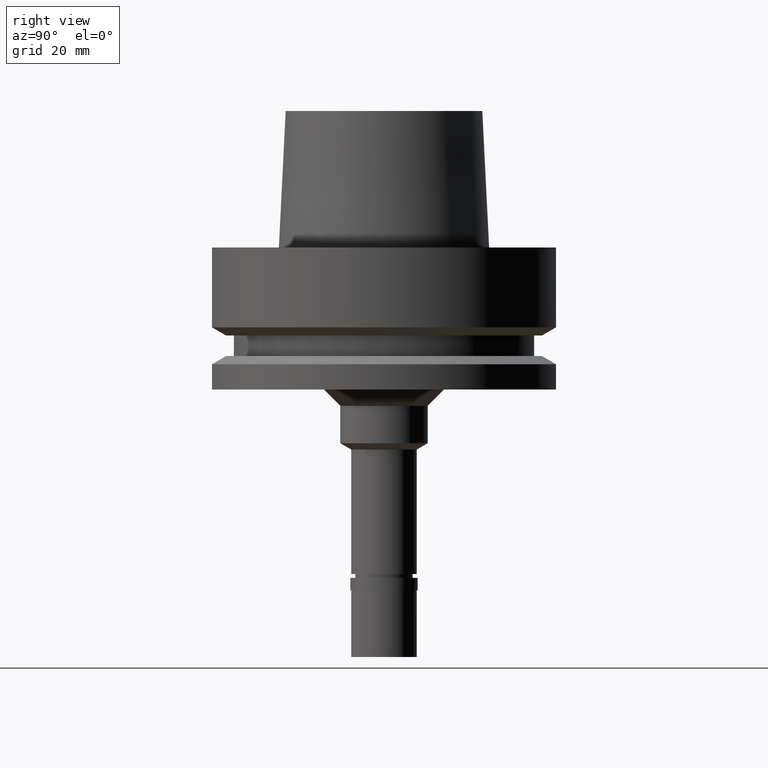
[diagram: clean part render]
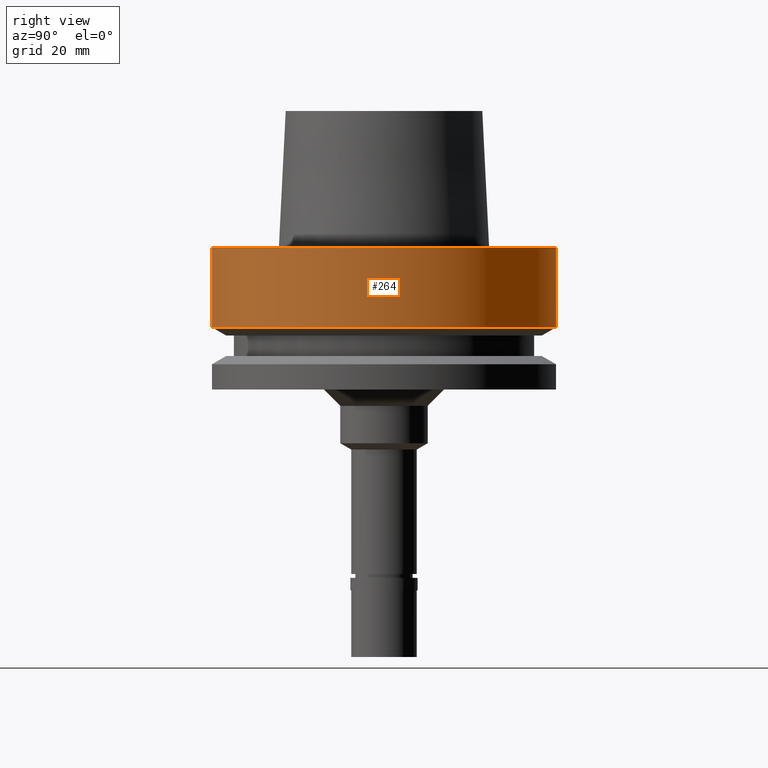
[diagram: same view with one face highlighted and labeled with its STEP entity id]
A machine part, right view. The second image highlights one B-rep face of the part: STEP entity #264.
In plain terms, the highlighted cylindrical surface (partial cylindrical patch) has radius 31.5 mm, axis along (0, 0, 1).
Its self-contained STEP definition (entity closure, byte-faithful):
#50 = DIRECTION ( 'NONE',  ( 0.0000000000000000000, 4.130355870612999632E-14, -1.000000000000000000 ) ) ;
#51 = ORIENTED_EDGE ( 'NONE', *, *, #2103, .F. ) ;
#52 = CARTESIAN_POINT ( 'NONE',  ( 0.0000000000000000000, -31.50000000000000000, 1.705302565823999875E-13 ) ) ;
#181 = DIRECTION ( 'NONE',  ( 0.0000000000000000000, -1.000000000000000000, 0.0000000000000000000 ) ) ;
#264 = ADVANCED_FACE ( 'NONE', ( #2628 ), #2136, .T. ) ;
#269 = ORIENTED_EDGE ( 'NONE', *, *, #1853, .T. ) ;
#311 = AXIS2_PLACEMENT_3D ( 'NONE', #1488, #2780, #1711 ) ;
#354 = CARTESIAN_POINT ( 'NONE',  ( 0.0000000000000000000, -31.50000000000000000, -14.62250092523999889 ) ) ;
#728 = CIRCLE ( 'NONE', #2654, 31.50000000000000000 ) ;
#797 = ORIENTED_EDGE ( 'NONE', *, *, #2784, .T. ) ;
#856 = DIRECTION ( 'NONE',  ( 0.0000000000000000000, 0.0000000000000000000, 1.000000000000000000 ) ) ;
#886 = CARTESIAN_POINT ( 'NONE',  ( 0.0000000000000000000, 31.50000000000000000, -14.62250092523999889 ) ) ;
#967 = CARTESIAN_POINT ( 'NONE',  ( 0.0000000000000000000, -31.50000000000000000, 1.042129345780999972E-13 ) ) ;
#1065 = CARTESIAN_POINT ( 'NONE',  ( 0.0000000000000000000, 0.0000000000000000000, 1.705302565823999875E-13 ) ) ;
#1471 = VECTOR ( 'NONE', #50, 1000.000000000000000 ) ;
#1488 = CARTESIAN_POINT ( 'NONE',  ( 0.0000000000000000000, 0.0000000000000000000, -75.80000000000001137 ) ) ;
#1554 = VERTEX_POINT ( 'NONE', #52 ) ;
#1700 = CARTESIAN_POINT ( 'NONE',  ( 0.0000000000000000000, 0.0000000000000000000, -14.62250092523999889 ) ) ;
#1711 = DIRECTION ( 'NONE',  ( 0.0000000000000000000, 1.000000000000000000, 0.0000000000000000000 ) ) ;
#1712 = LINE ( 'NONE', #2387, #1471 ) ;
#1745 = EDGE_LOOP ( 'NONE', ( #1817, #797, #269, #51 ) ) ;
#1806 = DIRECTION ( 'NONE',  ( 0.0000000000000000000, -4.130355870612999632E-14, -1.000000000000000000 ) ) ;
#1817 = ORIENTED_EDGE ( 'NONE', *, *, #1926, .T. ) ;
#1824 = VERTEX_POINT ( 'NONE', #354 ) ;
#1853 = EDGE_CURVE ( 'NONE', #1824, #2066, #2100, .T. ) ;
#1926 = EDGE_CURVE ( 'NONE', #2397, #1554, #728, .T. ) ;
#2066 = VERTEX_POINT ( 'NONE', #886 ) ;
#2081 = DIRECTION ( 'NONE',  ( 0.0000000000000000000, 0.0000000000000000000, -1.000000000000000000 ) ) ;
#2100 = CIRCLE ( 'NONE', #2474, 31.50000000000000000 ) ;
#2103 = EDGE_CURVE ( 'NONE', #2397, #2066, #1712, .T. ) ;
#2136 = CYLINDRICAL_SURFACE ( 'NONE', #311, 31.50000000000000000 ) ;
#2387 = CARTESIAN_POINT ( 'NONE',  ( 0.0000000000000000000, 31.50000000000000000, 1.042129345780999972E-13 ) ) ;
#2397 = VERTEX_POINT ( 'NONE', #2719 ) ;
#2430 = VECTOR ( 'NONE', #1806, 1000.000000000000000 ) ;
#2449 = LINE ( 'NONE', #967, #2430 ) ;
#2474 = AXIS2_PLACEMENT_3D ( 'NONE', #1700, #856, #181 ) ;
#2525 = DIRECTION ( 'NONE',  ( 0.0000000000000000000, 1.000000000000000000, 0.0000000000000000000 ) ) ;
#2628 = FACE_OUTER_BOUND ( 'NONE', #1745, .T. ) ;
#2654 = AXIS2_PLACEMENT_3D ( 'NONE', #1065, #2081, #2525 ) ;
#2719 = CARTESIAN_POINT ( 'NONE',  ( 0.0000000000000000000, 31.50000000000000000, 1.705302565823999875E-13 ) ) ;
#2780 = DIRECTION ( 'NONE',  ( 0.0000000000000000000, 0.0000000000000000000, 1.000000000000000000 ) ) ;
#2784 = EDGE_CURVE ( 'NONE', #1554, #1824, #2449, .T. ) ;